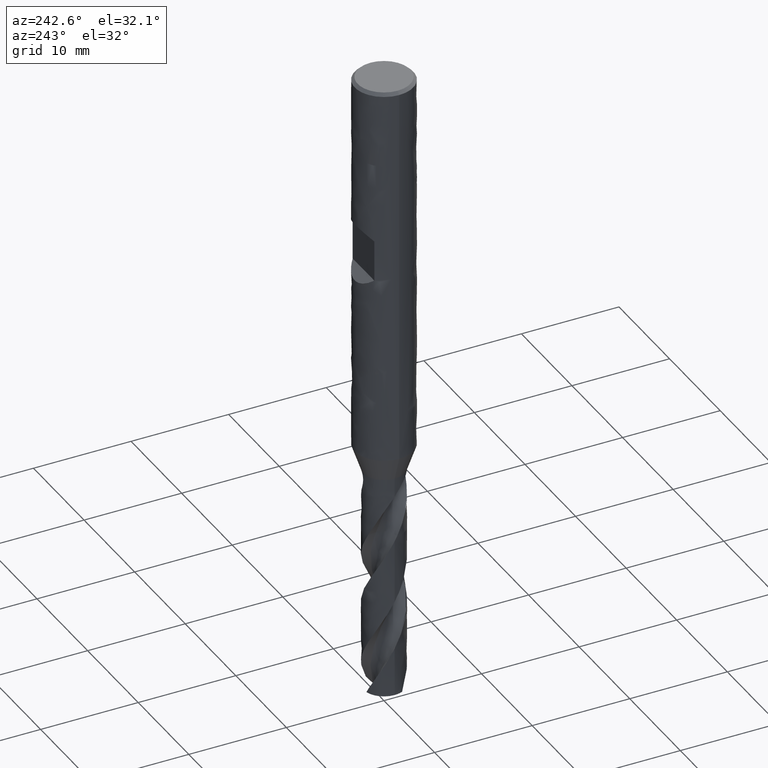
[diagram: clean part render]
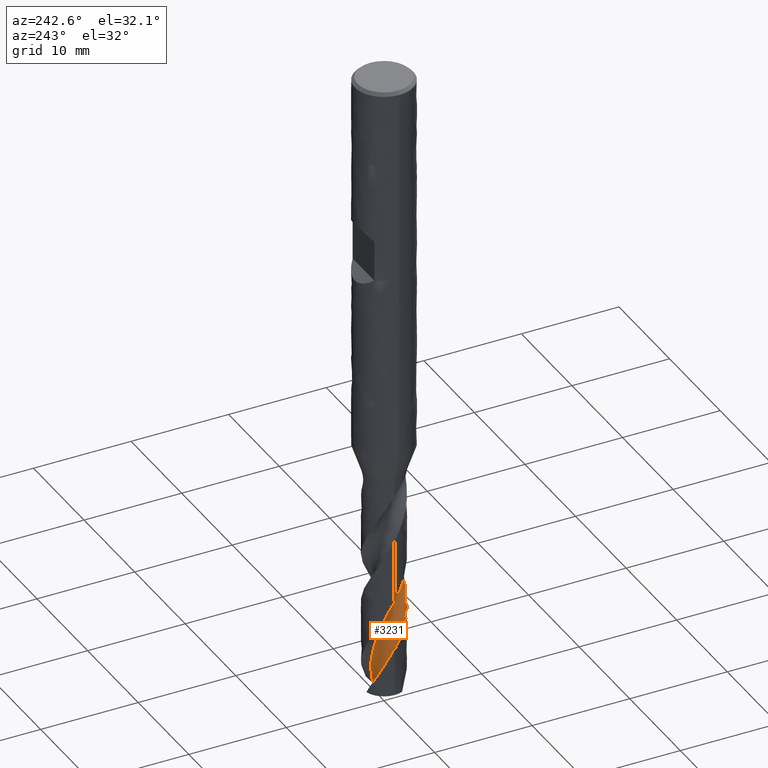
[diagram: same view with one face highlighted and labeled with its STEP entity id]
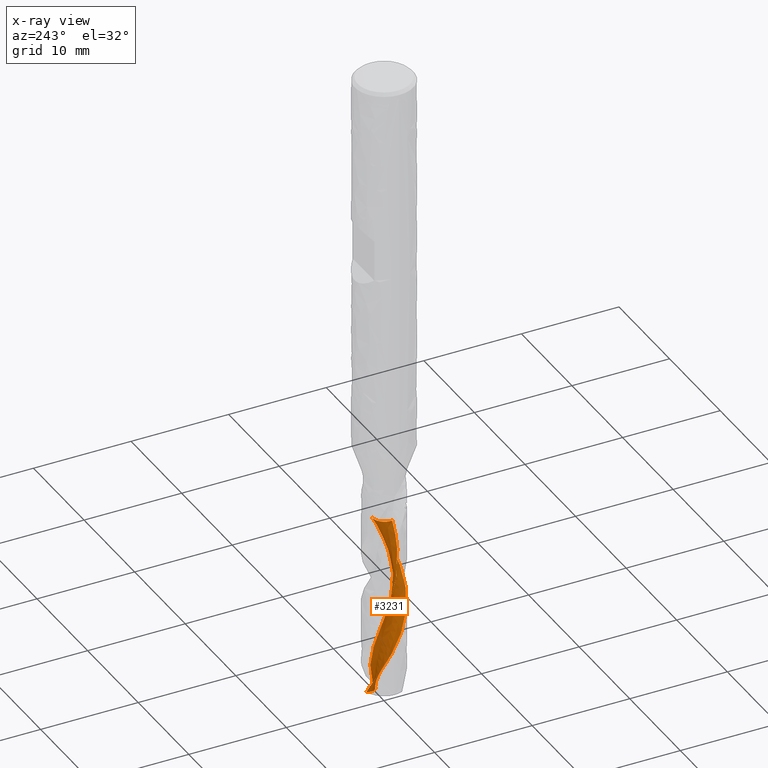
[diagram: x-ray of the same camera — body ghosted, the highlighted face saturated]
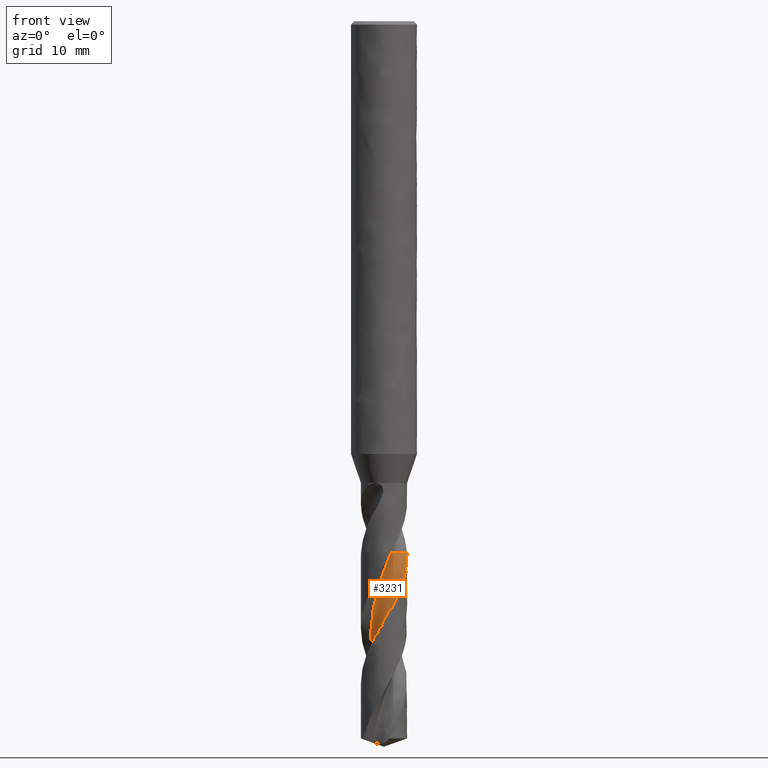
[diagram: same view with one face highlighted and labeled with its STEP entity id]
A machine part, auxiliary view. The second image highlights one B-rep face of the part: STEP entity #3231.
The next image is the same camera in x-ray: the body ghosted, the highlighted face saturated — about 0% of this face is hidden behind the body in this view.
A second angle (front view) of the same face is appended — the face is thin or edge-on in the first view.
In plain terms, the highlighted face is a freeform B-spline surface patch.
Its self-contained STEP definition (entity closure, byte-faithful):
#1787 = VERTEX_POINT('', #1788);
#1788 = CARTESIAN_POINT('', (0.556126910256113, -1.12758972511931, -48.3));
#1794 = EDGE_CURVE('', #1787, #1795, #1797, .T.);
#1795 = VERTEX_POINT('', #1796);
#1796 = CARTESIAN_POINT('', (2.08549341092007, 0.246408670726007, -48.3));
#1797 = B_SPLINE_CURVE_WITH_KNOTS('', 3, (#1798, #1799, #1800, #1801, #1802, #1803, #1804, #1805, #1806, #1807, #1808, #1809, #1810, #1811, #1812, #1813, #1814, #1815, #1816, #1817, #1818, #1819, #1820, #1821, #1822, #1823, #1824, #1825, #1826, #1827, #1828, #1829, #1830, #1831, #1832, #1833, #1834, #1835, #1836, #1837, #1838, #1839, #1840, #1841, #1842, #1843, #1844, #1845, #1846, #1847, #1848, #1849, #1850, #1851, #1852, #1853, #1854, #1855, #1856, #1857, #1858), .UNSPECIFIED., .F., .U., (4, 3, 3, 3, 3, 3, 3, 3, 3, 3, 3, 3, 3, 3, 3, 3, 3, 3, 3, 3, 4), (0., 0.13221393521754, 0.26423610894369, 0.396071642208949, 0.527724457489775, 0.659197375737823, 0.790492185102751, 0.921609684937988, 1.05254970736411, 1.18331111755208, 1.20922921835682, 1.34144286074896, 1.4734647503101, 1.60530000617978, 1.73695254911299, 1.86842519846345, 1.99971974086683, 2.13083697421148, 2.26177672916909, 2.39253786944637, 2.40342313004446), .UNSPECIFIED.);
#1798 = CARTESIAN_POINT('', (0.556126910256111, -1.12758972511931, -48.3));
#1799 = CARTESIAN_POINT('', (0.551058379935698, -1.08381084300929, -48.3));
#1800 = CARTESIAN_POINT('', (0.548286006554261, -1.03970519155441, -48.3));
#1801 = CARTESIAN_POINT('', (0.547832635129783, -0.99563621184347, -48.3));
#1802 = CARTESIAN_POINT('', (0.547379921269731, -0.951631149247312, -48.3));
#1803 = CARTESIAN_POINT('', (0.549238228141942, -0.907542044937355, -48.3));
#1804 = CARTESIAN_POINT('', (0.55339228715043, -0.863731152710823, -48.3));
#1805 = CARTESIAN_POINT('', (0.557540473543235, -0.819982196179533, -48.3));
#1806 = CARTESIAN_POINT('', (0.563989244777734, -0.77639109883157, -48.3));
#1807 = CARTESIAN_POINT('', (0.572685764558104, -0.733315012755468, -48.3));
#1808 = CARTESIAN_POINT('', (0.581370231362115, -0.69029862815309, -48.3));
#1809 = CARTESIAN_POINT('', (0.592319871981882, -0.64767858836026, -48.3));
#1810 = CARTESIAN_POINT('', (0.605445221439055, -0.605803124069619, -48.3));
#1811 = CARTESIAN_POINT('', (0.618552635758142, -0.563984880520942, -48.3));
#1812 = CARTESIAN_POINT('', (0.633865425813752, -0.522795514594196, -48.3));
#1813 = CARTESIAN_POINT('', (0.651258818136696, -0.482570650304446, -48.3));
#1814 = CARTESIAN_POINT('', (0.668628647297572, -0.442400279409593, -48.3));
#1815 = CARTESIAN_POINT('', (0.688120512084066, -0.403082907132266, -48.3));
#1816 = CARTESIAN_POINT('', (0.709576015765095, -0.364938038215183, -48.3));
#1817 = CARTESIAN_POINT('', (0.731002544460095, -0.326844682749398, -48.3));
#1818 = CARTESIAN_POINT('', (0.754445319103286, -0.289817681146443, -48.3));
#1819 = CARTESIAN_POINT('', (0.779714349834722, -0.254157115412651, -48.3));
#1820 = CARTESIAN_POINT('', (0.804949177030317, -0.218544818939805, -48.3));
#1821 = CARTESIAN_POINT('', (0.832073338609477, -0.184199242209074, -48.3));
#1822 = CARTESIAN_POINT('', (0.860867602739123, -0.151397984353718, -48.3));
#1823 = CARTESIAN_POINT('', (0.889622589282995, -0.118641469931049, -48.3));
#1824 = CARTESIAN_POINT('', (0.920120424878073, -0.0873369821821816, -48.3));
#1825 = CARTESIAN_POINT('', (0.952115280548496, -0.0577368521336566, -48.3));
#1826 = CARTESIAN_POINT('', (0.958456951943038, -0.0518698371379619, -48.3));
#1827 = CARTESIAN_POINT('', (0.964859304351878, -0.046067739663427, -48.3));
#1828 = CARTESIAN_POINT('', (0.971320306390285, -0.0403324006415595, -48.3));
#1829 = CARTESIAN_POINT('', (1.00427922646844, -0.0110752390868731, -48.3));
#1830 = CARTESIAN_POINT('', (1.03882256718141, 0.0164882051525758, -48.3));
#1831 = CARTESIAN_POINT('', (1.07466568442013, 0.0421308037253902, -48.3));
#1832 = CARTESIAN_POINT('', (1.11045681746813, 0.0677362121808962, -48.3));
#1833 = CARTESIAN_POINT('', (1.14764204336895, 0.0914965356064935, -48.3));
#1834 = CARTESIAN_POINT('', (1.18591583467709, 0.113216550476045, -48.3));
#1835 = CARTESIAN_POINT('', (1.22413551996553, 0.13490586069073, -48.3));
#1836 = CARTESIAN_POINT('', (1.26354513961639, 0.154619918654095, -48.3));
#1837 = CARTESIAN_POINT('', (1.30382180272504, 0.17219720314198, -48.3));
#1838 = CARTESIAN_POINT('', (1.34404264565616, 0.189750126943927, -48.3));
#1839 = CARTESIAN_POINT('', (1.38523774049331, 0.205220050276381, -48.3));
#1840 = CARTESIAN_POINT('', (1.42707050056864, 0.218480575325064, -48.3));
#1841 = CARTESIAN_POINT('', (1.46884609923319, 0.231722980834943, -48.3));
#1842 = CARTESIAN_POINT('', (1.51137115946979, 0.242798030029448, -48.3));
#1843 = CARTESIAN_POINT('', (1.55429917501708, 0.251615480264139, -48.3));
#1844 = CARTESIAN_POINT('', (1.59716903567185, 0.260420985435351, -48.3));
#1845 = CARTESIAN_POINT('', (1.64055695877341, 0.266998888652003, -48.3));
#1846 = CARTESIAN_POINT('', (1.68411036249484, 0.271295736119403, -48.3));
#1847 = CARTESIAN_POINT('', (1.72760494874466, 0.27558678083243, -48.3));
#1848 = CARTESIAN_POINT('', (1.77138214442973, 0.27761454302465, -48.3));
#1849 = CARTESIAN_POINT('', (1.81508716264177, 0.277362588946308, -48.3));
#1850 = CARTESIAN_POINT('', (1.8587330223745, 0.277110975909356, -48.3));
#1851 = CARTESIAN_POINT('', (1.90242456767089, 0.274585152296672, -48.3));
#1852 = CARTESIAN_POINT('', (1.94580866177188, 0.269805533068592, -48.3));
#1853 = CARTESIAN_POINT('', (1.98913357570942, 0.265032433710362, -48.3));
#1854 = CARTESIAN_POINT('', (2.03226836372527, 0.257998866746774, -48.3));
#1855 = CARTESIAN_POINT('', (2.07486533763539, 0.248761526281056, -48.3));
#1856 = CARTESIAN_POINT('', (2.07841133884583, 0.247992560378882, -48.3));
#1857 = CARTESIAN_POINT('', (2.08195409583425, 0.247208259662032, -48.3));
#1858 = CARTESIAN_POINT('', (2.08549341057053, 0.246408669178801, -48.3));
#2107 = VERTEX_POINT('', #2108);
#2108 = CARTESIAN_POINT('', (1.11444604643187, 0.581566300150511, -65.5424662007978));
#2133 = EDGE_CURVE('', #2107, #1787, #2134, .T.);
#2134 = B_SPLINE_CURVE_WITH_KNOTS('', 3, (#2135, #2136, #2137, #2138, #2139, #2140, #2141, #2142, #2143, #2144, #2145, #2146, #2147, #2148, #2149, #2150, #2151, #2152, #2153, #2154, #2155, #2156, #2157, #2158, #2159, #2160, #2161, #2162, #2163, #2164, #2165, #2166, #2167, #2168, #2169, #2170, #2171, #2172, #2173, #2174, #2175, #2176, #2177, #2178, #2179, #2180, #2181, #2182), .UNSPECIFIED., .F., .U., (4, 1, 1, 1, 1, 1, 1, 1, 1, 1, 1, 1, 1, 1, 1, 1, 1, 1, 1, 1, 1, 1, 1, 1, 1, 1, 1, 1, 1, 1, 1, 1, 1, 1, 1, 1, 1, 1, 1, 1, 1, 1, 1, 1, 1, 4), (0.507533799202143, 0.776451612903226, 1.16467741935484, 1.55290322580645, 1.94112903225806, 2.32935483870968, 2.71758064516129, 3.1058064516129, 3.49403225806452, 3.88225806451613, 4.27048387096774, 4.65870967741936, 5.04693548387097, 5.43516129032258, 5.82338709677419, 6.21161290322581, 6.59983870967742, 6.98806451612903, 7.37629032258064, 7.76451612903226, 8.15274193548387, 8.54096774193548, 8.9291935483871, 9.31741935483871, 9.70564516129032, 10.0938709677419, 10.4820967741935, 10.8703225806452, 11.2585483870968, 11.6467741935484, 12.035, 12.4232258064516, 12.8114516129032, 13.1996774193548, 13.5879032258065, 13.9761290322581, 14.3643548387097, 14.7525806451613, 15.1408064516129, 15.5290322580645, 15.9172580645161, 16.3054838709677, 16.6937096774194, 17.081935483871, 17.4701612903226, 17.75), .UNSPECIFIED.);
#2135 = CARTESIAN_POINT('', (1.11444604643187, 0.581566300150508, -65.5424662007979));
#2136 = CARTESIAN_POINT('', (1.09958197958272, 0.608378956918648, -65.4528269295642));
#2137 = CARTESIAN_POINT('', (1.06092422073548, 0.672526048182595, -65.2337790561799));
#2138 = CARTESIAN_POINT('', (0.990750734353666, 0.768587624938229, -64.8853225806452));
#2139 = CARTESIAN_POINT('', (0.902053744666071, 0.866629502482906, -64.4970967741936));
#2140 = CARTESIAN_POINT('', (0.803847846638253, 0.95467503692732, -64.1088709677419));
#2141 = CARTESIAN_POINT('', (0.697236201077628, 1.03182309798339, -63.7206451612903));
#2142 = CARTESIAN_POINT('', (0.583404524406081, 1.09729133780109, -63.3324193548387));
#2143 = CARTESIAN_POINT('', (0.463609280272826, 1.15042412721282, -62.9441935483871));
#2144 = CARTESIAN_POINT('', (0.33916420159019, 1.19069853749584, -62.5559677419355));
#2145 = CARTESIAN_POINT('', (0.211426588108073, 1.21772913464141, -62.1677419354839));
#2146 = CARTESIAN_POINT('', (0.0817831642782751, 1.23127132920844, -61.7795161290323));
#2147 = CARTESIAN_POINT('', (-0.0483642695370139, 1.2312233160208, -61.3912903225806));
#2148 = CARTESIAN_POINT('', (-0.177613277763277, 1.21762657692805, -61.003064516129));
#2149 = CARTESIAN_POINT('', (-0.304575175540798, 1.19066495319964, -60.6148387096774));
#2150 = CARTESIAN_POINT('', (-0.427889223103573, 1.15066230205254, -60.2266129032258));
#2151 = CARTESIAN_POINT('', (-0.546236492071324, 1.09807876628567, -59.8383870967742));
#2152 = CARTESIAN_POINT('', (-0.658353271451002, 1.03350569831154, -59.4501612903226));
#2153 = CARTESIAN_POINT('', (-0.763043885839737, 0.957659292238348, -59.061935483871));
#2154 = CARTESIAN_POINT('', (-0.859192804318572, 0.871372989348743, -58.6737096774194));
#2155 = CARTESIAN_POINT('', (-0.945775925503605, 0.775588733418992, -58.2854838709677));
#2156 = CARTESIAN_POINT('', (-1.02187093218607, 0.671347162693012, -57.8972580645161));
#2157 = CARTESIAN_POINT('', (-1.08666661785606, 0.559776834900799, -57.5090322580645));
#2158 = CARTESIAN_POINT('', (-1.13947109709492, 0.442082590413379, -57.1208064516129));
#2159 = CARTESIAN_POINT('', (-1.17971882225575, 0.319533166389721, -56.7325806451613));
#2160 = CARTESIAN_POINT('', (-1.20697633994337, 0.193448181534846, -56.3443548387097));
#2161 = CARTESIAN_POINT('', (-1.22094673246329, 0.0651846168001569, -55.9561290322581));
#2162 = CARTESIAN_POINT('', (-1.22147270153871, -0.0638770780283513, -55.5679032258065));
#2163 = CARTESIAN_POINT('', (-1.20853826409651, -0.192347118427518, -55.1796774193548));
#2164 = CARTESIAN_POINT('', (-1.18226904269721, -0.318840624175467, -54.7914516129032));
#2165 = CARTESIAN_POINT('', (-1.1429311461261, -0.441991826451189, -54.4032258064516));
#2166 = CARTESIAN_POINT('', (-1.09092864866856, -0.560468106175065, -54.015));
#2167 = CARTESIAN_POINT('', (-1.02679968955779, -0.67298372802666, -53.6267741935484));
#2168 = CARTESIAN_POINT('', (-0.95121122689672, -0.778313137028677, -53.2385483870968));
#2169 = CARTESIAN_POINT('', (-0.864952492932163, -0.875303688201977, -52.8503225806452));
#2170 = CARTESIAN_POINT('', (-0.768927209718156, -0.962887684621015, -52.4620967741935));
#2171 = CARTESIAN_POINT('', (-0.664144636132271, -1.04009360494526, -52.0738709677419));
#2172 = CARTESIAN_POINT('', (-0.551709527722944, -1.1060564090805, -51.6856451612903));
#2173 = CARTESIAN_POINT('', (-0.432811103907455, -1.1600268164354, -51.2974193548387));
#2174 = CARTESIAN_POINT('', (-0.308711117446968, -1.20137946847471, -50.9091935483871));
#2175 = CARTESIAN_POINT('', (-0.180731165047867, -1.22961986641742, -50.5209677419355));
#2176 = CARTESIAN_POINT('', (-0.0502392554036314, -1.24439010045574, -50.1327419354839));
#2177 = CARTESIAN_POINT('', (0.0813638547561035, -1.24547296997172, -49.7445161290323));
#2178 = CARTESIAN_POINT('', (0.21265985847607, -1.23279570517154, -49.3562903225806));
#2179 = CARTESIAN_POINT('', (0.342224141008773, -1.20642854654849, -48.968064516129));
#2180 = CARTESIAN_POINT('', (0.456887199841568, -1.17030263859277, -48.6159677419355));
#2181 = CARTESIAN_POINT('', (0.527161661547012, -1.1409744201767, -48.3932795698925));
#2182 = CARTESIAN_POINT('', (0.556126910256113, -1.12758972511931, -48.3));
#3077 = EDGE_CURVE('', #1795, #3078, #3080, .T.);
#3078 = VERTEX_POINT('', #3079);
#3079 = CARTESIAN_POINT('', (2.0736041746777, -0.331912227492774, -49.3073629635082));
#3080 = B_SPLINE_CURVE_WITH_KNOTS('', 3, (#3081, #3082, #3083, #3084, #3085, #3086, #3087, #3088, #3089, #3090, #3091, #3092, #3093, #3094, #3095, #3096), .UNSPECIFIED., .F., .U., (4, 3, 3, 3, 3, 4), (2.52809866126606, 2.85405191118041, 2.98531856185026, 3.0242332870372, 3.46872634636927, 3.69054353493761), .UNSPECIFIED.);
#3081 = CARTESIAN_POINT('', (2.08549341092007, 0.246408670726007, -48.3));
#3082 = CARTESIAN_POINT('', (2.09185901686923, 0.192533012761646, -48.3941379330722));
#3083 = CARTESIAN_POINT('', (2.0961362967668, 0.13839960956961, -48.4883181405325));
#3084 = CARTESIAN_POINT('', (2.09831112603013, 0.0842046220712682, -48.5824628767159));
#3085 = CARTESIAN_POINT('', (2.09918696498327, 0.0623794232310316, -48.6203764861069));
#3086 = CARTESIAN_POINT('', (2.09972226164663, 0.0405401250605844, -48.6582913771474));
#3087 = CARTESIAN_POINT('', (2.09991674879564, 0.018698880382213, -48.6962053637618));
#3088 = CARTESIAN_POINT('', (2.0999744055875, 0.0122239225002044, -48.7074451749576));
#3089 = CARTESIAN_POINT('', (2.10000211419172, 0.00574871812254038, -48.7186850376763));
#3090 = CARTESIAN_POINT('', (2.09999987436178, -0.000726416217616445, -48.7299248948754));
#3091 = CARTESIAN_POINT('', (2.09997429050224, -0.0746869095428525, -48.8583091630131));
#3092 = CARTESIAN_POINT('', (2.09603587739297, -0.148665292226961, -48.9867416369997));
#3093 = CARTESIAN_POINT('', (2.08821205067847, -0.222194580044649, -49.1151352003168));
#3094 = CARTESIAN_POINT('', (2.08430769444788, -0.258888201145643, -49.1792079651156));
#3095 = CARTESIAN_POINT('', (2.07943576115733, -0.295479697843316, -49.2432876297322));
#3096 = CARTESIAN_POINT('', (2.0736041746777, -0.331912227492784, -49.3073629635082));
#3231 = ADVANCED_FACE('', (#3232), #3401, .T.);
#3232 = FACE_OUTER_BOUND('', #3233, .T.);
#3233 = EDGE_LOOP('', (#3234, #3235, #3236, #3341, #3353, #3400));
#3234 = ORIENTED_EDGE('', *, *, #1794, .F.);
#3235 = ORIENTED_EDGE('', *, *, #2133, .F.);
#3236 = ORIENTED_EDGE('', *, *, #3237, .T.);
#3237 = EDGE_CURVE('', #2107, #3238, #3240, .T.);
#3238 = VERTEX_POINT('', #3239);
#3239 = CARTESIAN_POINT('', (-0.464502324696893, 2.04798378664266, -65.235662508041));
#3240 = B_SPLINE_CURVE_WITH_KNOTS('', 3, (#3241, #3242, #3243, #3244, #3245, #3246, #3247, #3248, #3249, #3250, #3251, #3252, #3253, #3254, #3255, #3256, #3257, #3258, #3259, #3260, #3261, #3262, #3263, #3264, #3265, #3266, #3267, #3268, #3269, #3270, #3271, #3272, #3273, #3274, #3275, #3276, #3277, #3278, #3279, #3280, #3281, #3282, #3283, #3284, #3285, #3286, #3287, #3288, #3289, #3290, #3291, #3292, #3293, #3294, #3295, #3296, #3297, #3298, #3299, #3300, #3301, #3302, #3303, #3304, #3305, #3306, #3307, #3308, #3309, #3310, #3311, #3312, #3313, #3314, #3315, #3316, #3317, #3318, #3319, #3320, #3321, #3322, #3323, #3324, #3325, #3326, #3327, #3328, #3329, #3330, #3331, #3332, #3333, #3334, #3335, #3336, #3337, #3338, #3339, #3340), .UNSPECIFIED., .F., .U., (4, 3, 3, 3, 3, 3, 3, 3, 3, 3, 3, 3, 3, 3, 3, 3, 3, 3, 3, 3, 3, 3, 3, 3, 3, 3, 3, 3, 3, 3, 3, 3, 3, 4), (0., 0.0877021646124259, 0.175304800895599, 0.262769073619714, 0.350056846956624, 0.408226632900585, 0.466340116328143, 0.524406370272248, 0.582442326873756, 0.640471846784208, 0.698522267242208, 0.756618900979025, 0.814779328418034, 0.873009859194751, 0.931305531629722, 0.989653143129533, 1.04803552562604, 1.10643532219518, 1.16483739472373, 1.22322985623233, 1.28187817102794, 1.30788990022712, 1.3963362862171, 1.48454186244085, 1.57255041851284, 1.66039769842416, 1.74811182901882, 1.83571449958826, 1.92322222781367, 2.05423319591058, 2.1850075132453, 2.31557441912827, 2.4459509750768, 2.50560509662431), .UNSPECIFIED.);
#3241 = CARTESIAN_POINT('', (1.11444604643187, 0.581566300150509, -65.5424662007979));
#3242 = CARTESIAN_POINT('', (1.08775741072722, 0.574712528697517, -65.552232085565));
#3243 = CARTESIAN_POINT('', (1.06069741029669, 0.569047524774485, -65.5619018130478));
#3244 = CARTESIAN_POINT('', (1.03340036551076, 0.564635544057311, -65.5713905293095));
#3245 = CARTESIAN_POINT('', (1.00613429862912, 0.560228570252696, -65.5808684773527));
#3246 = CARTESIAN_POINT('', (0.978579069103278, 0.557063618295643, -65.5901843258466));
#3247 = CARTESIAN_POINT('', (0.950879326602744, 0.555190463126957, -65.5992345675857));
#3248 = CARTESIAN_POINT('', (0.923223334326177, 0.553320266504117, -65.6082705149643));
#3249 = CARTESIAN_POINT('', (0.895366542179003, 0.552734420173852, -65.6170603256604));
#3250 = CARTESIAN_POINT('', (0.867463344530945, 0.553463228013011, -65.6254793689188));
#3251 = CARTESIAN_POINT('', (0.839616454414323, 0.554190565147241, -65.6338814228863));
#3252 = CARTESIAN_POINT('', (0.811662598403329, 0.556229463757373, -65.6419323323916));
#3253 = CARTESIAN_POINT('', (0.783765397586181, 0.559583910629776, -65.6494865823275));
#3254 = CARTESIAN_POINT('', (0.765174315033236, 0.561819360671271, -65.6545208395315));
#3255 = CARTESIAN_POINT('', (0.74658475230071, 0.5646410357532, -65.6593405957895));
#3256 = CARTESIAN_POINT('', (0.728047512026234, 0.568041625877236, -65.6638986702501));
#3257 = CARTESIAN_POINT('', (0.709528213940432, 0.571438924571226, -65.668452332952));
#3258 = CARTESIAN_POINT('', (0.691041240947716, 0.575417771994043, -65.6727495403073));
#3259 = CARTESIAN_POINT('', (0.672638880959618, 0.579962535628703, -65.6767420525969));
#3260 = CARTESIAN_POINT('', (0.654251476777045, 0.584503605682696, -65.6807313201268));
#3261 = CARTESIAN_POINT('', (0.635928125261606, 0.589614802744467, -65.6844205740369));
#3262 = CARTESIAN_POINT('', (0.617721978558373, 0.595271005142834, -65.6877635969029));
#3263 = CARTESIAN_POINT('', (0.599525331311823, 0.600924256293442, -65.6911048754733));
#3264 = CARTESIAN_POINT('', (0.581425082844159, 0.607128410225789, -65.6941037908712));
#3265 = CARTESIAN_POINT('', (0.56347407158491, 0.613848290713163, -65.6967202317893));
#3266 = CARTESIAN_POINT('', (0.545525051248537, 0.620567425907495, -65.6993363825215));
#3267 = CARTESIAN_POINT('', (0.527704684274853, 0.627809829174123, -65.7015728610384));
#3268 = CARTESIAN_POINT('', (0.510063661703866, 0.635530824301095, -65.7034001295868));
#3269 = CARTESIAN_POINT('', (0.492416285348949, 0.643254600306248, -65.7052280562642));
#3270 = CARTESIAN_POINT('', (0.474928472513103, 0.651465894800107, -65.7066483582092));
#3271 = CARTESIAN_POINT('', (0.457646454937081, 0.660112562100883, -65.7076458235067));
#3272 = CARTESIAN_POINT('', (0.440350679343623, 0.668766112915054, -65.7086440828748));
#3273 = CARTESIAN_POINT('', (0.423242318333921, 0.677864872604166, -65.7092198939702));
#3274 = CARTESIAN_POINT('', (0.406360872924133, 0.687352617631954, -65.7093742053531));
#3275 = CARTESIAN_POINT('', (0.389460890641693, 0.696850780791428, -65.7095286861795));
#3276 = CARTESIAN_POINT('', (0.372771332968918, 0.706748068134614, -65.7092610583606));
#3277 = CARTESIAN_POINT('', (0.356323418468413, 0.716988235207048, -65.7085876671005));
#3278 = CARTESIAN_POINT('', (0.339855678568481, 0.727240745206144, -65.7079134641721));
#3279 = CARTESIAN_POINT('', (0.323615265036128, 0.737845979232631, -65.7068322024379));
#3280 = CARTESIAN_POINT('', (0.307624757186505, 0.74875138976216, -65.7053725284416));
#3281 = CARTESIAN_POINT('', (0.291616360985466, 0.759669000017784, -65.7039112215289));
#3282 = CARTESIAN_POINT('', (0.275845777126448, 0.77089587657969, -65.7020698408305));
#3283 = CARTESIAN_POINT('', (0.260327791249035, 0.782385734086142, -65.6998849679953));
#3284 = CARTESIAN_POINT('', (0.244795979479562, 0.793885828586681, -65.6976981485276));
#3285 = CARTESIAN_POINT('', (0.229506746854559, 0.805656980023012, -65.6951660610881));
#3286 = CARTESIAN_POINT('', (0.214468725049041, 0.81766029518355, -65.6923288344349));
#3287 = CARTESIAN_POINT('', (0.199421741659784, 0.829670763460059, -65.6894899169979));
#3288 = CARTESIAN_POINT('', (0.184617751789243, 0.841920389984699, -65.6863441263994));
#3289 = CARTESIAN_POINT('', (0.170061123074316, 0.854377588091746, -65.6829316074867));
#3290 = CARTESIAN_POINT('', (0.155500152464129, 0.866838501883962, -65.679518070701));
#3291 = CARTESIAN_POINT('', (0.141179806880678, 0.879512970851854, -65.6758361864538));
#3292 = CARTESIAN_POINT('', (0.127101907711942, 0.892375870750531, -65.671923766202));
#3293 = CARTESIAN_POINT('', (0.11302345989871, 0.9052392719427, -65.6680111934752));
#3294 = CARTESIAN_POINT('', (0.099181892682977, 0.918296222218338, -65.6638665978331));
#3295 = CARTESIAN_POINT('', (0.0855778199569331, 0.931526897157091, -65.6595241959249));
#3296 = CARTESIAN_POINT('', (0.0719759860044213, 0.944755394771049, -65.6551825086302));
#3297 = CARTESIAN_POINT('', (0.0586069810852465, 0.958162039603669, -65.6506416482703));
#3298 = CARTESIAN_POINT('', (0.0454711407464973, 0.97173112749241, -65.6459317823463));
#3299 = CARTESIAN_POINT('', (0.0322777442122857, 0.98535966990059, -65.641201279603));
#3300 = CARTESIAN_POINT('', (0.0193156771151103, 0.999156117428039, -65.6362988980224));
#3301 = CARTESIAN_POINT('', (0.00658559035559319, 1.01310767271497, -65.6312511725291));
#3302 = CARTESIAN_POINT('', (0.000939536063587041, 1.01929547332435, -65.629012402855));
#3303 = CARTESIAN_POINT('', (-0.00466136260799102, 1.02551434208522, -65.6267448042249));
#3304 = CARTESIAN_POINT('', (-0.0102170102389767, 1.0317633124529, -65.6244504538054));
#3305 = CARTESIAN_POINT('', (-0.0291076019036758, 1.05301137485381, -65.6166490884578));
#3306 = CARTESIAN_POINT('', (-0.0474819145759562, 1.07461448923739, -65.6085368478764));
#3307 = CARTESIAN_POINT('', (-0.0653335637511543, 1.0965404290499, -65.6001841419923));
#3308 = CARTESIAN_POINT('', (-0.0831366088888152, 1.11840667190157, -65.5918541777176));
#3309 = CARTESIAN_POINT('', (-0.100428798159703, 1.14060519448492, -65.5832806360477));
#3310 = CARTESIAN_POINT('', (-0.117199337865572, 1.16310967665201, -65.5745189822195));
#3311 = CARTESIAN_POINT('', (-0.133932418099836, 1.18556389174209, -65.5657768988361));
#3312 = CARTESIAN_POINT('', (-0.150153943339579, 1.20833328623916, -65.5568432765177));
#3313 = CARTESIAN_POINT('', (-0.165848804721781, 1.23139448772411, -65.5477623028043));
#3314 = CARTESIAN_POINT('', (-0.181514905184604, 1.25441342943113, -65.5386979700249));
#3315 = CARTESIAN_POINT('', (-0.196663247628403, 1.27773349504883, -65.5294826140897));
#3316 = CARTESIAN_POINT('', (-0.211274756564582, 1.30133234266581, -65.5201520885141));
#3317 = CARTESIAN_POINT('', (-0.225864118970643, 1.32489542172585, -65.5108357051306));
#3318 = CARTESIAN_POINT('', (-0.239924701798945, 1.34874693228301, -65.5014002563425));
#3319 = CARTESIAN_POINT('', (-0.253433851219331, 1.37286426060164, -65.4918755229467));
#3320 = CARTESIAN_POINT('', (-0.266925834304889, 1.39695094256939, -65.4823628928119));
#3321 = CARTESIAN_POINT('', (-0.279873799483531, 1.42131360593136, -65.472756852086));
#3322 = CARTESIAN_POINT('', (-0.292251867300833, 1.4459284091089, -65.4630828203763));
#3323 = CARTESIAN_POINT('', (-0.304616519970338, 1.47051653516465, -65.4534192732243));
#3324 = CARTESIAN_POINT('', (-0.316418182819549, 1.49536763275565, -65.4436833575289));
#3325 = CARTESIAN_POINT('', (-0.327628055514044, 1.52045585868581, -65.4338974290608));
#3326 = CARTESIAN_POINT('', (-0.344410759210405, 1.55801634429773, -65.4192465634936));
#3327 = CARTESIAN_POINT('', (-0.359882364421668, 1.59614345731714, -65.4044704704159));
#3328 = CARTESIAN_POINT('', (-0.373934876760931, 1.63473840307729, -65.3896362483818));
#3329 = CARTESIAN_POINT('', (-0.38796200544107, 1.67326363312231, -65.3748288220427));
#3330 = CARTESIAN_POINT('', (-0.400591370270732, 1.71230049243338, -65.3599458265898));
#3331 = CARTESIAN_POINT('', (-0.411703859797589, 1.751731708119, -65.3450493380812));
#3332 = CARTESIAN_POINT('', (-0.422798724628463, 1.79110038487606, -65.3301764757888));
#3333 = CARTESIAN_POINT('', (-0.432395547761478, 1.8309133931128, -65.31527072823));
#3334 = CARTESIAN_POINT('', (-0.440366610553198, 1.87102965469745, -65.3003932794425));
#3335 = CARTESIAN_POINT('', (-0.448326052549668, 1.91108743187742, -65.2855375200822));
#3336 = CARTESIAN_POINT('', (-0.454675518961867, 1.95150576918623, -65.270688371015));
#3337 = CARTESIAN_POINT('', (-0.459282283834046, 1.99211400456337, -65.2559093063412));
#3338 = CARTESIAN_POINT('', (-0.461390120704152, 2.01069440493821, -65.2491471080763));
#3339 = CARTESIAN_POINT('', (-0.463134398771969, 2.02932393883567, -65.2423960389289));
#3340 = CARTESIAN_POINT('', (-0.464502324696893, 2.04798378664266, -65.235662508041));
#3341 = ORIENTED_EDGE('', *, *, #3342, .F.);
#3342 = EDGE_CURVE('', #3343, #3238, #3345, .T.);
#3343 = VERTEX_POINT('', #3344);
#3344 = CARTESIAN_POINT('', (-0.828041115209702, 1.92985696659682, -64.5597761126608));
#3345 = B_SPLINE_CURVE_WITH_KNOTS('', 3, (#3346, #3347, #3348, #3349, #3350, #3351, #3352), .UNSPECIFIED., .F., .U., (4, 3, 4), (0., 0.442744756661778, 0.776681833751656), .UNSPECIFIED.);
#3346 = CARTESIAN_POINT('', (-0.828041115209646, 1.92985696659685, -64.5597761126609));
#3347 = CARTESIAN_POINT('', (-0.761192449372504, 1.95853963311989, -64.6881851657356));
#3348 = CARTESIAN_POINT('', (-0.692838216326626, 1.98375003378285, -64.8166415018013));
#3349 = CARTESIAN_POINT('', (-0.623390998011592, 2.00533879022913, -64.9450600902456));
#3350 = CARTESIAN_POINT('', (-0.571010928576098, 2.02162195590688, -65.0419188952881));
#3351 = CARTESIAN_POINT('', (-0.517987329849532, 2.03585287555251, -65.1387984977339));
#3352 = CARTESIAN_POINT('', (-0.464502324696894, 2.04798378664266, -65.235662508041));
#3353 = ORIENTED_EDGE('', *, *, #3354, .T.);
#3354 = EDGE_CURVE('', #3343, #3078, #3355, .T.);
#3355 = B_SPLINE_CURVE_WITH_KNOTS('', 3, (#3356, #3357, #3358, #3359, #3360, #3361, #3362, #3363, #3364, #3365, #3366, #3367, #3368, #3369, #3370, #3371, #3372, #3373, #3374, #3375, #3376, #3377, #3378, #3379, #3380, #3381, #3382, #3383, #3384, #3385, #3386, #3387, #3388, #3389, #3390, #3391, #3392, #3393, #3394, #3395, #3396, #3397, #3398, #3399), .UNSPECIFIED., .F., .U., (4, 1, 1, 1, 1, 1, 1, 1, 1, 1, 1, 1, 1, 1, 1, 1, 1, 1, 1, 1, 1, 1, 1, 1, 1, 1, 1, 1, 1, 1, 1, 1, 1, 1, 1, 1, 1, 1, 1, 1, 1, 4), (1.49022388733918, 1.55290322580645, 1.94112903225806, 2.32935483870968, 2.71758064516129, 3.1058064516129, 3.49403225806452, 3.88225806451613, 4.27048387096774, 4.65870967741936, 5.04693548387097, 5.43516129032258, 5.82338709677419, 6.21161290322581, 6.59983870967742, 6.98806451612903, 7.37629032258064, 7.76451612903226, 8.15274193548387, 8.54096774193548, 8.9291935483871, 9.31741935483871, 9.70564516129032, 10.0938709677419, 10.4820967741935, 10.8703225806452, 11.2585483870968, 11.6467741935484, 12.035, 12.4232258064516, 12.8114516129032, 13.1996774193548, 13.5879032258065, 13.9761290322581, 14.3643548387097, 14.7525806451613, 15.1408064516129, 15.5290322580645, 15.9172580645161, 16.3054838709677, 16.6937096774194, 16.7426370364918), .UNSPECIFIED.);
#3356 = CARTESIAN_POINT('', (-0.828041115209701, 1.92985696659682, -64.5597761126608));
#3357 = CARTESIAN_POINT('', (-0.838901854231986, 1.92490523144577, -64.5388829998384));
#3358 = CARTESIAN_POINT('', (-0.916716578203858, 1.88863094349086, -64.3885812848654));
#3359 = CARTESIAN_POINT('', (-1.05715595254796, 1.81246091648719, -64.1088709677419));
#3360 = CARTESIAN_POINT('', (-1.23957712116287, 1.6872705121948, -63.7206451612903));
#3361 = CARTESIAN_POINT('', (-1.40758665918495, 1.54404553122654, -63.3324193548387));
#3362 = CARTESIAN_POINT('', (-1.55943618213883, 1.38440475570176, -62.9441935483871));
#3363 = CARTESIAN_POINT('', (-1.69355504133313, 1.21013266222113, -62.5559677419355));
#3364 = CARTESIAN_POINT('', (-1.8085656610193, 1.02316043643528, -62.1677419354839));
#3365 = CARTESIAN_POINT('', (-1.90329683711349, 0.825545474851907, -61.7795161290323));
#3366 = CARTESIAN_POINT('', (-1.97679491997668, 0.619449762254632, -61.3912903225806));
#3367 = CARTESIAN_POINT('', (-2.02833277398133, 0.40711729128209, -61.003064516129));
#3368 = CARTESIAN_POINT('', (-2.05741644134849, 0.19085076012293, -60.6148387096774));
#3369 = CARTESIAN_POINT('', (-2.06378945589196, -0.0270122269103705, -60.2266129032258));
#3370 = CARTESIAN_POINT('', (-2.04743477535678, -0.24412322336176, -59.8383870967742));
#3371 = CARTESIAN_POINT('', (-2.00857432299322, -0.458147036499582, -59.4501612903226));
#3372 = CARTESIAN_POINT('', (-1.94766615123541, -0.666785622851985, -59.061935483871));
#3373 = CARTESIAN_POINT('', (-1.86539926225914, -0.867801554075018, -58.6737096774194));
#3374 = CARTESIAN_POINT('', (-1.76268614170825, -1.05904082859267, -58.2854838709677));
#3375 = CARTESIAN_POINT('', (-1.64065308280264, -1.23845481119658, -57.8972580645161));
#3376 = CARTESIAN_POINT('', (-1.50062839821175, -1.40412109141373, -57.5090322580645));
#3377 = CARTESIAN_POINT('', (-1.34412863633481, -1.55426306187381, -57.1208064516129));
#3378 = CARTESIAN_POINT('', (-1.1728429368199, -1.68726803004065, -56.7325806451613));
#3379 = CARTESIAN_POINT('', (-0.988615677133574, -1.80170369041069, -56.3443548387097));
#3380 = CARTESIAN_POINT('', (-0.793427577627258, -1.89633279951153, -55.9561290322581));
#3381 = CARTESIAN_POINT('', (-0.589375446710034, -1.9701259126301, -55.5679032258065));
#3382 = CARTESIAN_POINT('', (-0.378650760316338, -2.02227205902695, -55.1796774193548));
#3383 = CARTESIAN_POINT('', (-0.16351728074881, -2.05218725130883, -54.7914516129032));
#3384 = CARTESIAN_POINT('', (0.053712070909508, -2.05952074448119, -54.4032258064516));
#3385 = CARTESIAN_POINT('', (0.270698867361556, -2.04415898082977, -54.015));
#3386 = CARTESIAN_POINT('', (0.485103125849295, -2.00622717801823, -53.6267741935484));
#3387 = CARTESIAN_POINT('', (0.694607326941113, -1.94608853946394, -53.2385483870968));
#3388 = CARTESIAN_POINT('', (0.896940269816986, -1.86434108801108, -52.8503225806452));
#3389 = CARTESIAN_POINT('', (1.0899005332802, -1.76181214589877, -52.4620967741935));
#3390 = CARTESIAN_POINT('', (1.27137931408012, -1.63955050615513, -52.0738709677419));
#3391 = CARTESIAN_POINT('', (1.43938242018589, -1.49881636147972, -51.6856451612903));
#3392 = CARTESIAN_POINT('', (1.59205119847977, -1.34106908061167, -51.2974193548387));
#3393 = CARTESIAN_POINT('', (1.72768220339973, -1.16795293256856, -50.9091935483871));
#3394 = CARTESIAN_POINT('', (1.84474535521284, -0.981280916897607, -50.5209677419355));
#3395 = CARTESIAN_POINT('', (1.9419006046254, -0.783016735027896, -50.1327419354839));
#3396 = CARTESIAN_POINT('', (2.01801218093258, -0.575255484706559, -49.7445161290323));
#3397 = CARTESIAN_POINT('', (2.05638762250331, -0.422852022257954, -49.4693898050404));
#3398 = CARTESIAN_POINT('', (2.07192527633625, -0.341077137321101, -49.323672083199));
#3399 = CARTESIAN_POINT('', (2.0736041746777, -0.331912227492772, -49.3073629635082));
#3400 = ORIENTED_EDGE('', *, *, #3077, .F.);
#3401 = (
   BOUNDED_SURFACE ()
   B_SPLINE_SURFACE (3, 2, ((#3402, #3403, #3404, #3405, #3406), (#3407, #3408, #3409, #3410, #3411), (#3412, #3413, #3414, #3415, #3416), (#3417, #3418, #3419, #3420, #3421), (#3422, #3423, #3424, #3425, #3426), (#3427, #3428, #3429, #3430, #3431), (#3432, #3433, #3434, #3435, #3436), (#3437, #3438, #3439, #3440, #3441), (#3442, #3443, #3444, #3445, #3446), (#3447, #3448, #3449, #3450, #3451), (#3452, #3453, #3454, #3455, #3456), (#3457, #3458, #3459, #3460, #3461), (#3462, #3463, #3464, #3465, #3466), (#3467, #3468, #3469, #3470, #3471), (#3472, #3473, #3474, #3475, #3476), (#3477, #3478, #3479, #3480, #3481), (#3482, #3483, #3484, #3485, #3486), (#3487, #3488, #3489, #3490, #3491), (#3492, #3493, #3494, #3495, #3496), (#3497, #3498, #3499, #3500, #3501), (#3502, #3503, #3504, #3505, #3506), (#3507, #3508, #3509, #3510, #3511), (#3512, #3513, #3514, #3515, #3516), (#3517, #3518, #3519, #3520, #3521), (#3522, #3523, #3524, #3525, #3526), (#3527, #3528, #3529, #3530, #3531), (#3532, #3533, #3534, #3535, #3536), (#3537, #3538, #3539, #3540, #3541), (#3542, #3543, #3544, #3545, #3546), (#3547, #3548, #3549, #3550, #3551), (#3552, #3553, #3554, #3555, #3556), (#3557, #3558, #3559, #3560, #3561), (#3562, #3563, #3564, #3565, #3566), (#3567, #3568, #3569, #3570, #3571), (#3572, #3573, #3574, #3575, #3576), (#3577, #3578, #3579, #3580, #3581), (#3582, #3583, #3584, #3585, #3586), (#3587, #3588, #3589, #3590, #3591), (#3592, #3593, #3594, #3595, #3596), (#3597, #3598, #3599, #3600, #3601), (#3602, #3603, #3604, #3605, #3606), (#3607, #3608, #3609, #3610, #3611), (#3612, #3613, #3614, #3615, #3616), (#3617, #3618, #3619, #3620, #3621), (#3622, #3623, #3624, #3625, #3626), (#3627, #3628, #3629, #3630, #3631), (#3632, #3633, #3634, #3635, #3636), (#3637, #3638, #3639, #3640, #3641)), .UNSPECIFIED., .F., .F., .U.)
   B_SPLINE_SURFACE_WITH_KNOTS ((4, 1, 1, 1, 1, 1, 1, 1, 1, 1, 1, 1, 1, 1, 1, 1, 1, 1, 1, 1, 1, 1, 1, 1, 1, 1, 1, 1, 1, 1, 1, 1, 1, 1, 1, 1, 1, 1, 1, 1, 1, 1, 1, 1, 1, 4), (3, 2, 3), (0.340471313814944, 0.776451612903226, 1.16467741935484, 1.55290322580645, 1.94112903225806, 2.32935483870968, 2.71758064516129, 3.1058064516129, 3.49403225806452, 3.88225806451613, 4.27048387096774, 4.65870967741936, 5.04693548387097, 5.43516129032258, 5.82338709677419, 6.21161290322581, 6.59983870967742, 6.98806451612903, 7.37629032258064, 7.76451612903226, 8.15274193548387, 8.54096774193548, 8.9291935483871, 9.31741935483871, 9.70564516129032, 10.0938709677419, 10.4820967741935, 10.8703225806452, 11.2585483870968, 11.6467741935484, 12.035, 12.4232258064516, 12.8114516129032, 13.1996774193548, 13.5879032258065, 13.9761290322581, 14.3643548387097, 14.7525806451613, 15.1408064516129, 15.5290322580645, 15.9172580645161, 16.3054838709677, 16.6937096774194, 17.081935483871, 17.4701612903226, 17.75), (0., 0.5, 1.), .UNSPECIFIED.)
   GEOMETRIC_REPRESENTATION_ITEM ()
   RATIONAL_B_SPLINE_SURFACE (((1., 0.887010833178222, 1., 0.887010833178222, 1.), (1., 0.887010833178222, 1., 0.887010833178222, 1.), (1., 0.887010833178222, 1., 0.887010833178222, 1.), (1., 0.887010833178222, 1., 0.887010833178222, 1.), (1., 0.887010833178222, 1., 0.887010833178222, 1.), (1., 0.887010833178222, 1., 0.887010833178222, 1.), (1., 0.887010833178222, 1., 0.887010833178222, 1.), (1., 0.887010833178222, 1., 0.887010833178222, 1.), (1., 0.887010833178222, 1., 0.887010833178222, 1.), (1., 0.887010833178222, 1., 0.887010833178222, 1.), (1., 0.887010833178222, 1., 0.887010833178222, 1.), (1., 0.887010833178222, 1., 0.887010833178222, 1.), (1., 0.887010833178222, 1., 0.887010833178222, 1.), (1., 0.887010833178222, 1., 0.887010833178222, 1.), (1., 0.887010833178222, 1., 0.887010833178222, 1.), (1., 0.887010833178222, 1., 0.887010833178222, 1.), (1., 0.887010833178222, 1., 0.887010833178222, 1.), (1., 0.887010833178222, 1., 0.887010833178222, 1.), (1., 0.887010833178222, 1., 0.887010833178222, 1.), (1., 0.887010833178222, 1., 0.887010833178222, 1.), (1., 0.887010833178222, 1., 0.887010833178222, 1.), (1., 0.887010833178221, 1., 0.887010833178221, 1.), (1., 0.887010833178222, 1., 0.887010833178222, 1.), (1., 0.887010833178222, 1., 0.887010833178222, 1.), (1., 0.887010833178222, 1., 0.887010833178222, 1.), (1., 0.887010833178222, 1., 0.887010833178222, 1.), (1., 0.887010833178221, 1., 0.887010833178221, 1.), (1., 0.887010833178222, 1., 0.887010833178222, 1.), (1., 0.887010833178221, 1., 0.887010833178221, 1.), (1., 0.887010833178222, 1., 0.887010833178222, 1.), (1., 0.887010833178222, 1., 0.887010833178222, 1.), (1., 0.887010833178222, 1., 0.887010833178222, 1.), (1., 0.887010833178222, 1., 0.887010833178222, 1.), (1., 0.887010833178222, 1., 0.887010833178222, 1.), (1., 0.887010833178222, 1., 0.887010833178222, 1.), (1., 0.887010833178222, 1., 0.887010833178222, 1.), (1., 0.887010833178222, 1., 0.887010833178222, 1.), (1., 0.887010833178222, 1., 0.887010833178222, 1.), (1., 0.887010833178222, 1., 0.887010833178222, 1.), (1., 0.887010833178222, 1., 0.887010833178222, 1.), (1., 0.887010833178222, 1., 0.887010833178222, 1.), (1., 0.887010833178222, 1., 0.887010833178222, 1.), (1., 0.887010833178222, 1., 0.887010833178222, 1.), (1., 0.887010833178221, 1., 0.887010833178221, 1.), (1., 0.887010833178222, 1., 0.887010833178222, 1.), (1., 0.887010833178222, 1., 0.887010833178222, 1.), (1., 0.887010833178222, 1., 0.887010833178222, 1.), (1., 0.887010833178222, 1., 0.887010833178222, 1.)))
   REPRESENTATION_ITEM ('')
   SURFACE ()
);
#3402 = CARTESIAN_POINT('', (-0.195653529612447, 2.10680889226283, -65.7095286861851));
#3403 = CARTESIAN_POINT('', (-0.362206698384, 1.47168931735515, -65.7095286861851));
#3404 = CARTESIAN_POINT('', (0.0625218267626173, 0.970967326240787, -65.7095286861851));
#3405 = CARTESIAN_POINT('', (0.487250351909234, 0.470245335126423, -65.7095286861851));
#3406 = CARTESIAN_POINT('', (1.14103206842125, 0.530960239502146, -65.7095286861851));
#3407 = CARTESIAN_POINT('', (-0.278727613884665, 2.09693276349614, -65.5642019198223));
#3408 = CARTESIAN_POINT('', (-0.420007844595555, 1.45587602511081, -65.5642019198223));
#3409 = CARTESIAN_POINT('', (0.0240800819000206, 0.972450995804477, -65.5642019198223));
#3410 = CARTESIAN_POINT('', (0.468168008395595, 0.489025966498146, -65.5642019198223));
#3411 = CARTESIAN_POINT('', (1.1188849797182, 0.57552029377863, -65.5642019198223));
#3412 = CARTESIAN_POINT('', (-0.434440455142505, 2.06907739393617, -65.289466551309));
#3413 = CARTESIAN_POINT('', (-0.527357767525436, 1.41961678351748, -65.289466551309));
#3414 = CARTESIAN_POINT('', (-0.048645961727707, 0.970988074654835, -65.289466551309));
#3415 = CARTESIAN_POINT('', (0.430065844070021, 0.522359365792191, -65.289466551309));
#3416 = CARTESIAN_POINT('', (1.07213877967022, 0.657174264062468, -65.289466551309));
#3417 = CARTESIAN_POINT('', (-0.656856246679796, 2.00319534290981, -64.8853225806452));
#3418 = CARTESIAN_POINT('', (-0.677923826827621, 1.34934006320195, -64.8853225806452));
#3419 = CARTESIAN_POINT('', (-0.154400805329509, 0.957046530631491, -64.8853225806452));
#3420 = CARTESIAN_POINT('', (0.369122216168602, 0.564752998061029, -64.8853225806452));
#3421 = CARTESIAN_POINT('', (0.990750734353666, 0.768587624938229, -64.8853225806452));
#3422 = CARTESIAN_POINT('', (-0.86223218311751, 1.91818161519093, -64.4970967741936));
#3423 = CARTESIAN_POINT('', (-0.814388376841923, 1.26731906711903, -64.4970967741936));
#3424 = CARTESIAN_POINT('', (-0.253790910132657, 0.933190997958794, -64.4970967741936));
#3425 = CARTESIAN_POINT('', (0.306806556576608, 0.599062928798563, -64.4970967741936));
#3426 = CARTESIAN_POINT('', (0.90205374466607, 0.866629502482905, -64.4970967741936));
#3427 = CARTESIAN_POINT('', (-1.05715595254796, 1.81246091648719, -64.1088709677419));
#3428 = CARTESIAN_POINT('', (-0.941250915479932, 1.1717386776746, -64.108870967742));
#3429 = CARTESIAN_POINT('', (-0.349921585618562, 0.899179347303272, -64.1088709677419));
#3430 = CARTESIAN_POINT('', (0.241407744242807, 0.626620016931949, -64.108870967742));
#3431 = CARTESIAN_POINT('', (0.803847846638253, 0.954675036927319, -64.1088709677419));
#3432 = CARTESIAN_POINT('', (-1.23957712116287, 1.6872705121948, -63.7206451612903));
#3433 = CARTESIAN_POINT('', (-1.05719024096029, 1.06369299189043, -63.7206451612903));
#3434 = CARTESIAN_POINT('', (-0.441772623646523, 0.855426205775061, -63.7206451612903));
#3435 = CARTESIAN_POINT('', (0.173644993667244, 0.647159419659694, -63.7206451612903));
#3436 = CARTESIAN_POINT('', (0.697236201077628, 1.03182309798339, -63.7206451612903));
#3437 = CARTESIAN_POINT('', (-1.40758665918495, 1.54404553122654, -63.3324193548387));
#3438 = CARTESIAN_POINT('', (-1.16100632183226, 0.944401264575613, -63.3324193548387));
#3439 = CARTESIAN_POINT('', (-0.528373823785989, 0.802446230455559, -63.3324193548387));
#3440 = CARTESIAN_POINT('', (0.104258674260284, 0.660491196335504, -63.3324193548387));
#3441 = CARTESIAN_POINT('', (0.583404524406081, 1.09729133780109, -63.3324193548387));
#3442 = CARTESIAN_POINT('', (-1.55943618213883, 1.38440475570176, -62.9441935483871));
#3443 = CARTESIAN_POINT('', (-1.25163241920189, 0.815195799623977, -62.9441935483871));
#3444 = CARTESIAN_POINT('', (-0.608814753762367, 0.740849036707422, -62.9441935483871));
#3445 = CARTESIAN_POINT('', (0.0340029116771577, 0.666502273790866, -62.9441935483871));
#3446 = CARTESIAN_POINT('', (0.463609280272825, 1.15042412721282, -62.9441935483871));
#3447 = CARTESIAN_POINT('', (-1.69355504133313, 1.21013266222113, -62.5559677419355));
#3448 = CARTESIAN_POINT('', (-1.32814528750916, 0.677507414223395, -62.5559677419355));
#3449 = CARTESIAN_POINT('', (-0.682253802365618, 0.6713322694143, -62.5559677419355));
#3450 = CARTESIAN_POINT('', (-0.0363623172220773, 0.665157124605206, -62.5559677419355));
#3451 = CARTESIAN_POINT('', (0.33916420159019, 1.19069853749584, -62.5559677419355));
#3452 = CARTESIAN_POINT('', (-1.8085656610193, 1.02316043643528, -62.1677419354839));
#3453 = CARTESIAN_POINT('', (-1.38977402428835, 0.532850361839758, -62.1677419354839));
#3454 = CARTESIAN_POINT('', (-0.747926509778185, 0.594674081905533, -62.1677419354839));
#3455 = CARTESIAN_POINT('', (-0.106078995268016, 0.656497801971307, -62.1677419354839));
#3456 = CARTESIAN_POINT('', (0.211426588108073, 1.21772913464141, -62.1677419354839));
#3457 = CARTESIAN_POINT('', (-1.90329683711349, 0.825545474851907, -61.7795161290323));
#3458 = CARTESIAN_POINT('', (-1.43590731535056, 0.38280639991665, -61.7795161290323));
#3459 = CARTESIAN_POINT('', (-0.805153080750126, 0.511724781313287, -61.7795161290323));
#3460 = CARTESIAN_POINT('', (-0.174398846149691, 0.640643162709924, -61.7795161290323));
#3461 = CARTESIAN_POINT('', (0.0817831642782753, 1.23127132920844, -61.7795161290323));
#3462 = CARTESIAN_POINT('', (-1.97679491997668, 0.619449762254632, -61.3912903225806));
#3463 = CARTESIAN_POINT('', (-1.46609906170436, 0.229008285638599, -61.3912903225806));
#3464 = CARTESIAN_POINT('', (-0.853345017512042, 0.423397811191232, -61.3912903225806));
#3465 = CARTESIAN_POINT('', (-0.240590973319727, 0.617787336743864, -61.3912903225806));
#3466 = CARTESIAN_POINT('', (-0.0483642695370136, 1.2312233160208, -61.3912903225806));
#3467 = CARTESIAN_POINT('', (-2.02833277398133, 0.40711729128209, -61.003064516129));
#3468 = CARTESIAN_POINT('', (-1.48007232990039, 0.0731228291256384, -61.003064516129));
#3469 = CARTESIAN_POINT('', (-0.892010811735542, 0.330660139332648, -61.003064516129));
#3470 = CARTESIAN_POINT('', (-0.303949293570696, 0.588197449539658, -61.003064516129));
#3471 = CARTESIAN_POINT('', (-0.177613277763277, 1.21762657692805, -61.003064516129));
#3472 = CARTESIAN_POINT('', (-2.05741644134849, 0.19085076012293, -60.6148387096774));
#3473 = CARTESIAN_POINT('', (-1.47772159947302, -0.0831663210943305, -60.6148387096774));
#3474 = CARTESIAN_POINT('', (-0.920760645649787, 0.234522152747833, -60.6148387096774));
#3475 = CARTESIAN_POINT('', (-0.363799691826551, 0.552210626589995, -60.6148387096774));
#3476 = CARTESIAN_POINT('', (-0.304575175540797, 1.19066495319964, -60.6148387096774));
#3477 = CARTESIAN_POINT('', (-2.06378945589196, -0.0270122269103708, -60.2266129032258));
#3478 = CARTESIAN_POINT('', (-1.45911329282342, -0.23817599534432, -60.2266129032258));
#3479 = CARTESIAN_POINT('', (-0.939310061471697, 0.136027157981302, -60.2266129032258));
#3480 = CARTESIAN_POINT('', (-0.419506830119979, 0.510230311306925, -60.2266129032258));
#3481 = CARTESIAN_POINT('', (-0.427889223103572, 1.15066230205254, -60.2266129032258));
#3482 = CARTESIAN_POINT('', (-2.04743477535678, -0.24412322336176, -59.8383870967742));
#3483 = CARTESIAN_POINT('', (-1.42448459004584, -0.390240754715211, -59.8383870967742));
#3484 = CARTESIAN_POINT('', (-0.947482568216329, 0.0362405901503266, -59.8383870967742));
#3485 = CARTESIAN_POINT('', (-0.470480546386816, 0.462721935015864, -59.8383870967742));
#3486 = CARTESIAN_POINT('', (-0.546236492071324, 1.09807876628567, -59.8383870967742));
#3487 = CARTESIAN_POINT('', (-2.00857432299321, -0.458147036499582, -59.4501612903226));
#3488 = CARTESIAN_POINT('', (-1.37424054676152, -0.537729911827637, -59.4501612903226));
#3489 = CARTESIAN_POINT('', (-0.945211164918073, -0.0637609642911259, -59.4501612903226));
#3490 = CARTESIAN_POINT('', (-0.516181783074624, 0.410207983245385, -59.4501612903226));
#3491 = CARTESIAN_POINT('', (-0.658353271451002, 1.03350569831154, -59.4501612903226));
#3492 = CARTESIAN_POINT('', (-1.94766615123541, -0.666785622851985, -59.061935483871));
#3493 = CARTESIAN_POINT('', (-1.30894954872319, -0.679064157300759, -59.061935483871));
#3494 = CARTESIAN_POINT('', (-0.932538769421396, -0.162900824664295, -59.061935483871));
#3495 = CARTESIAN_POINT('', (-0.556127990119602, 0.353262507972168, -59.061935483871));
#3496 = CARTESIAN_POINT('', (-0.763043885839737, 0.957659292238348, -59.061935483871));
#3497 = CARTESIAN_POINT('', (-1.86539926225914, -0.867801554075017, -58.6737096774194));
#3498 = CARTESIAN_POINT('', (-1.22933715216494, -0.812731633158893, -58.6737096774194));
#3499 = CARTESIAN_POINT('', (-0.90961755205646, -0.260113246391257, -58.6737096774194));
#3500 = CARTESIAN_POINT('', (-0.589897951947981, 0.292505140376378, -58.6737096774194));
#3501 = CARTESIAN_POINT('', (-0.859192804318572, 0.871372989348742, -58.6737096774194));
#3502 = CARTESIAN_POINT('', (-1.76268614170825, -1.05904082859267, -58.2854838709677));
#3503 = CARTESIAN_POINT('', (-1.13627837360651, -0.93730330007236, -58.2854838709678));
#3504 = CARTESIAN_POINT('', (-0.8767071836302, -0.354354318494456, -58.2854838709677));
#3505 = CARTESIAN_POINT('', (-0.617135993653891, 0.228594663083447, -58.2854838709678));
#3506 = CARTESIAN_POINT('', (-0.945775925503604, 0.775588733418992, -58.2854838709677));
#3507 = CARTESIAN_POINT('', (-1.64065308280264, -1.23845481119658, -57.8972580645161));
#3508 = CARTESIAN_POINT('', (-1.03078850692673, -1.05144745233022, -57.8972580645161));
#3509 = CARTESIAN_POINT('', (-0.834172017151549, -0.444612623792048, -57.8972580645161));
#3510 = CARTESIAN_POINT('', (-0.637555527376367, 0.162222204746123, -57.8972580645161));
#3511 = CARTESIAN_POINT('', (-1.02187093218607, 0.671347162693012, -57.8972580645161));
#3512 = CARTESIAN_POINT('', (-1.50062839821174, -1.40412109141373, -57.5090322580645));
#3513 = CARTESIAN_POINT('', (-0.914012558895266, -1.15394324269015, -57.5090322580645));
#3514 = CARTESIAN_POINT('', (-0.78247723249078, -0.529919559776918, -57.5090322580645));
#3515 = CARTESIAN_POINT('', (-0.650941906086295, 0.0941041231363157, -57.5090322580645));
#3516 = CARTESIAN_POINT('', (-1.08666661785606, 0.559776834900799, -57.5090322580645));
#3517 = CARTESIAN_POINT('', (-1.34412863633481, -1.55426306187381, -57.1208064516129));
#3518 = CARTESIAN_POINT('', (-0.787213406887045, -1.24369308867861, -57.1208064516129));
#3519 = CARTESIAN_POINT('', (-0.722183982668394, -0.609359221517858, -57.1208064516129));
#3520 = CARTESIAN_POINT('', (-0.657154558449743, 0.024974645642893, -57.1208064516129));
#3521 = CARTESIAN_POINT('', (-1.13947109709492, 0.44208259041338, -57.1208064516129));
#3522 = CARTESIAN_POINT('', (-1.1728429368199, -1.68726803004065, -56.7325806451613));
#3523 = CARTESIAN_POINT('', (-0.651758794102531, -1.31973384243968, -56.7325806451613));
#3524 = CARTESIAN_POINT('', (-0.65394358960309, -0.68207775212483, -56.7325806451613));
#3525 = CARTESIAN_POINT('', (-0.656128385103648, -0.0444216618099777, -56.7325806451613));
#3526 = CARTESIAN_POINT('', (-1.17971882225575, 0.319533166389721, -56.7325806451613));
#3527 = CARTESIAN_POINT('', (-0.988615677133574, -1.80170369041069, -56.3443548387097));
#3528 = CARTESIAN_POINT('', (-0.509107288187148, -1.3812466177657, -56.3443548387097));
#3529 = CARTESIAN_POINT('', (-0.578490845847731, -0.74729207134021, -56.3443548387097));
#3530 = CARTESIAN_POINT('', (-0.647874403508314, -0.113337524914721, -56.3443548387097));
#3531 = CARTESIAN_POINT('', (-1.20697633994337, 0.193448181534846, -56.3443548387097));
#3532 = CARTESIAN_POINT('', (-0.793427577627258, -1.89633279951153, -55.9561290322581));
#3533 = CARTESIAN_POINT('', (-0.360793338602033, -1.4275651803909, -55.9561290322581));
#3534 = CARTESIAN_POINT('', (-0.496636487037645, -0.804297898612003, -55.9561290322581));
#3535 = CARTESIAN_POINT('', (-0.632479635473258, -0.181030616833103, -55.9561290322581));
#3536 = CARTESIAN_POINT('', (-1.22094673246329, 0.0651846168001571, -55.9561290322581));
#3537 = CARTESIAN_POINT('', (-0.589375446710034, -1.97012591263009, -55.5679032258065));
#3538 = CARTESIAN_POINT('', (-0.208411576370232, -1.45818282088945, -55.5679032258064));
#3539 = CARTESIAN_POINT('', (-0.409258907401205, -0.852476993525213, -55.5679032258065));
#3540 = CARTESIAN_POINT('', (-0.610106238432178, -0.24677116616098, -55.5679032258064));
#3541 = CARTESIAN_POINT('', (-1.22147270153871, -0.063877078028351, -55.5679032258065));
#3542 = CARTESIAN_POINT('', (-0.378650760316338, -2.02227205902695, -55.1796774193548));
#3543 = CARTESIAN_POINT('', (-0.0536005068411608, -1.47275764348301, -55.1796774193548));
#3544 = CARTESIAN_POINT('', (-0.317295197676957, -0.891303543660939, -55.1796774193548));
#3545 = CARTESIAN_POINT('', (-0.580989888512754, -0.30984944383887, -55.1796774193548));
#3546 = CARTESIAN_POINT('', (-1.20853826409651, -0.192347118427517, -55.1796774193548));
#3547 = CARTESIAN_POINT('', (-0.16351728074881, -2.05218725130883, -54.7914516129032));
#3548 = CARTESIAN_POINT('', (0.101974248175754, -1.47111621861851, -54.7914516129032));
#3549 = CARTESIAN_POINT('', (-0.221731591087693, -0.920349637761211, -54.7914516129032));
#3550 = CARTESIAN_POINT('', (-0.54543743035114, -0.369583056903911, -54.7914516129032));
#3551 = CARTESIAN_POINT('', (-1.18226904269721, -0.318840624175467, -54.7914516129032));
#3552 = CARTESIAN_POINT('', (0.0537120709095082, -2.05952074448119, -54.4032258064516));
#3553 = CARTESIAN_POINT('', (0.256636998207869, -1.45325556220566, -54.4032258064516));
#3554 = CARTESIAN_POINT('', (-0.12359340858778, -0.939289770438699, -54.4032258064516));
#3555 = CARTESIAN_POINT('', (-0.503823815383429, -0.425323978671737, -54.4032258064516));
#3556 = CARTESIAN_POINT('', (-1.1429311461261, -0.441991826451189, -54.4032258064516));
#3557 = CARTESIAN_POINT('', (0.270698867361556, -2.04415898082977, -54.015));
#3558 = CARTESIAN_POINT('', (0.408719158193918, -1.41934341978621, -54.015));
#3559 = CARTESIAN_POINT('', (-0.0239345993787299, -0.947904333517469, -54.015));
#3560 = CARTESIAN_POINT('', (-0.456588356951377, -0.476465247248732, -54.015));
#3561 = CARTESIAN_POINT('', (-1.09092864866856, -0.560468106175065, -54.015));
#3562 = CARTESIAN_POINT('', (0.485103125849295, -2.00622717801823, -53.6267741935484));
#3563 = CARTESIAN_POINT('', (0.556576383655188, -1.3697168495188, -53.6267741935484));
#3564 = CARTESIAN_POINT('', (0.0761730233605259, -0.946082058353772, -53.6267741935484));
#3565 = CARTESIAN_POINT('', (-0.404230336934136, -0.522447267188743, -53.6267741935484));
#3566 = CARTESIAN_POINT('', (-1.02679968955779, -0.672983728026659, -53.6267741935484));
#3567 = CARTESIAN_POINT('', (0.694607326941113, -1.94608853946394, -53.2385483870968));
#3568 = CARTESIAN_POINT('', (0.69860550170207, -1.3048791135743, -53.2385483870968));
#3569 = CARTESIAN_POINT('', (0.175650748498499, -0.933821383088958, -53.2385483870968));
#3570 = CARTESIAN_POINT('', (-0.347304004705072, -0.562763652603615, -53.2385483870968));
#3571 = CARTESIAN_POINT('', (-0.95121122689672, -0.778313137028677, -53.2385483870968));
#3572 = CARTESIAN_POINT('', (0.896940269816987, -1.86434108801108, -52.8503225806452));
#3573 = CARTESIAN_POINT('', (0.833261073964515, -1.22549490323768, -52.8503225806452));
#3574 = CARTESIAN_POINT('', (0.273424029494407, -0.91123072866013, -52.8503225806452));
#3575 = CARTESIAN_POINT('', (-0.2864130149757, -0.596966554082576, -52.8503225806452));
#3576 = CARTESIAN_POINT('', (-0.864952492932163, -0.875303688201976, -52.8503225806452));
#3577 = CARTESIAN_POINT('', (1.0899005332802, -1.76181214589877, -52.4620967741935));
#3578 = CARTESIAN_POINT('', (0.959071430409902, -1.13238393850101, -52.4620967741935));
#3579 = CARTESIAN_POINT('', (0.368433536991524, -0.878527677431684, -52.4620967741935));
#3580 = CARTESIAN_POINT('', (-0.222204356426852, -0.624671416362355, -52.4620967741935));
#3581 = CARTESIAN_POINT('', (-0.768927209718155, -0.962887684621015, -52.4620967741935));
#3582 = CARTESIAN_POINT('', (1.27137931408012, -1.63955050615513, -52.0738709677419));
#3583 = CARTESIAN_POINT('', (1.0746540170296, -1.02651299836088, -52.0738709677419));
#3584 = CARTESIAN_POINT('', (0.459646094471783, -0.836037058533028, -52.0738709677419));
#3585 = CARTESIAN_POINT('', (-0.155361828086039, -0.64556111870517, -52.0738709677419));
#3586 = CARTESIAN_POINT('', (-0.664144636132271, -1.04009360494526, -52.0738709677419));
#3587 = CARTESIAN_POINT('', (1.43938242018589, -1.49881636147972, -51.6856451612903));
#3588 = CARTESIAN_POINT('', (1.17872990688683, -0.908986452219021, -51.6856451612903));
#3589 = CARTESIAN_POINT('', (0.546065391229125, -0.784187953929993, -51.6856451612903));
#3590 = CARTESIAN_POINT('', (-0.0865991244285818, -0.659389455640964, -51.6856451612903));
#3591 = CARTESIAN_POINT('', (-0.551709527722945, -1.1060564090805, -51.6856451612903));
#3592 = CARTESIAN_POINT('', (1.59205119847977, -1.34106908061167, -51.2974193548387));
#3593 = CARTESIAN_POINT('', (1.27013732785413, -0.781035379545828, -51.2974193548387));
#3594 = CARTESIAN_POINT('', (0.626742366029884, -0.72350965025997, -51.2974193548387));
#3595 = CARTESIAN_POINT('', (-0.0166525957943612, -0.665983920974112, -51.2974193548387));
#3596 = CARTESIAN_POINT('', (-0.432811103907455, -1.1600268164354, -51.2974193548387));
#3597 = CARTESIAN_POINT('', (1.72768220339973, -1.16795293256856, -50.9091935483871));
#3598 = CARTESIAN_POINT('', (1.34784408064117, -0.644005369453309, -50.9091935483871));
#3599 = CARTESIAN_POINT('', (0.700785166372964, -0.654626568123411, -50.9091935483871));
#3600 = CARTESIAN_POINT('', (0.0537262521047548, -0.665247766793514, -50.9091935483871));
#3601 = CARTESIAN_POINT('', (-0.308711117446969, -1.20137946847471, -50.9091935483871));
#3602 = CARTESIAN_POINT('', (1.84474535521284, -0.981280916897607, -50.5209677419355));
#3603 = CARTESIAN_POINT('', (1.41095868586447, -0.499343138877967, -50.5209677419355));
#3604 = CARTESIAN_POINT('', (0.767368557838161, -0.578252222600549, -50.5209677419355));
#3605 = CARTESIAN_POINT('', (0.123778429811853, -0.657161306323132, -50.5209677419355));
#3606 = CARTESIAN_POINT('', (-0.180731165047867, -1.22961986641742, -50.5209677419355));
#3607 = CARTESIAN_POINT('', (1.9419006046254, -0.783016735027896, -50.1327419354839));
#3608 = CARTESIAN_POINT('', (1.45874027571723, -0.348581992457193, -50.1327419354839));
#3609 = CARTESIAN_POINT('', (0.825742788588934, -0.495182232130875, -50.1327419354839));
#3610 = CARTESIAN_POINT('', (0.192745301460634, -0.641782471804556, -50.1327419354839));
#3611 = CARTESIAN_POINT('', (-0.0502392554036316, -1.24439010045574, -50.1327419354839));
#3612 = CARTESIAN_POINT('', (2.01801218093258, -0.575255484706558, -49.7445161290323));
#3613 = CARTESIAN_POINT('', (1.49060663830268, -0.193326634314948, -49.7445161290323));
#3614 = CARTESIAN_POINT('', (0.875241448077995, -0.406286573782305, -49.7445161290323));
#3615 = CARTESIAN_POINT('', (0.259876257853314, -0.619246513249662, -49.7445161290323));
#3616 = CARTESIAN_POINT('', (0.0813638547561031, -1.24547296997171, -49.7445161290323));
#3617 = CARTESIAN_POINT('', (2.07216307618523, -0.36020170047881, -49.3562903225806));
#3618 = CARTESIAN_POINT('', (1.50614214748283, -0.0352360747456722, -49.3562903225807));
#3619 = CARTESIAN_POINT('', (0.915289623654637, -0.312500650058003, -49.3562903225806));
#3620 = CARTESIAN_POINT('', (0.324437099826449, -0.589765225370333, -49.3562903225807));
#3621 = CARTESIAN_POINT('', (0.21265985847607, -1.23279570517154, -49.3562903225806));
#3622 = CARTESIAN_POINT('', (2.10365915148635, -0.140150749964117, -48.968064516129));
#3623 = CARTESIAN_POINT('', (1.50509869725319, 0.123989984412115, -48.968064516129));
#3624 = CARTESIAN_POINT('', (0.945407102429189, -0.214817134184854, -48.968064516129));
#3625 = CARTESIAN_POINT('', (0.385715507605187, -0.553624252781823, -48.968064516129));
#3626 = CARTESIAN_POINT('', (0.342224141008772, -1.20642854654849, -48.968064516129));
#3627 = CARTESIAN_POINT('', (2.11127987544103, 0.0618231432532014, -48.6159677419355));
#3628 = CARTESIAN_POINT('', (1.48906065463317, 0.267876313663635, -48.6159677419355));
#3629 = CARTESIAN_POINT('', (0.96338149555914, -0.123628589874174, -48.6159677419355));
#3630 = CARTESIAN_POINT('', (0.437702336485109, -0.515133493411982, -48.6159677419355));
#3631 = CARTESIAN_POINT('', (0.456887199841572, -1.17030263859277, -48.6159677419355));
#3632 = CARTESIAN_POINT('', (2.1045702275896, 0.189671651316331, -48.3932795698924));
#3633 = CARTESIAN_POINT('', (1.47073834386662, 0.357731558545159, -48.3932795698924));
#3634 = CARTESIAN_POINT('', (0.969520694185611, -0.0650779220602625, -48.3932795698924));
#3635 = CARTESIAN_POINT('', (0.468303044504603, -0.487887402665683, -48.3932795698924));
#3636 = CARTESIAN_POINT('', (0.52716166154702, -1.1409744201767, -48.3932795698924));
#3637 = CARTESIAN_POINT('', (2.09975205545582, 0.243100244809454, -48.3));
#3638 = CARTESIAN_POINT('', (1.46165451713228, 0.395068784107555, -48.3));
#3639 = CARTESIAN_POINT('', (0.971171465422634, -0.040464545657868, -48.3));
#3640 = CARTESIAN_POINT('', (0.480688413712991, -0.47599787542329, -48.3));
#3641 = CARTESIAN_POINT('', (0.556126910256126, -1.1275897251193, -48.3));